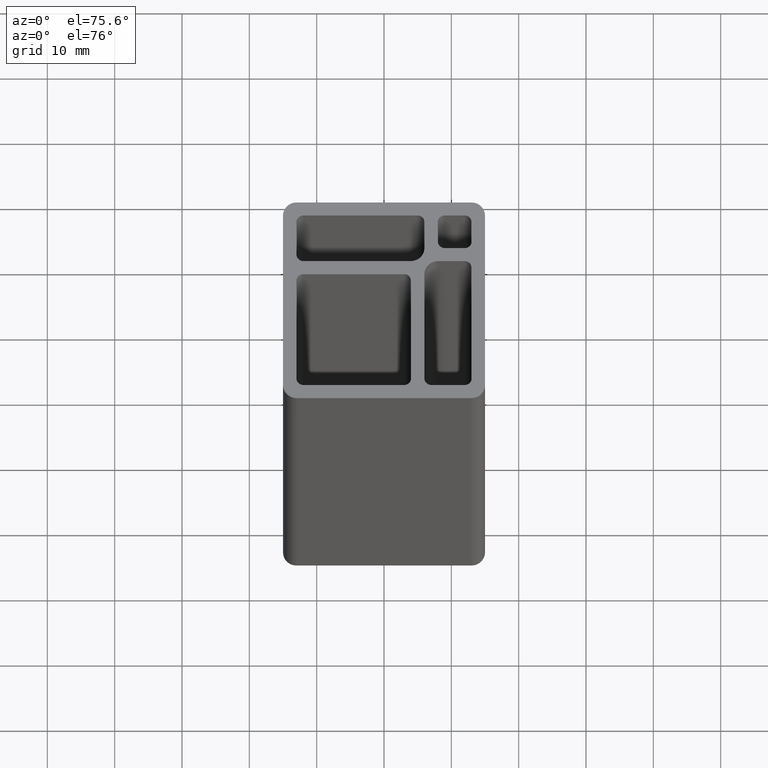
[diagram: clean part render]
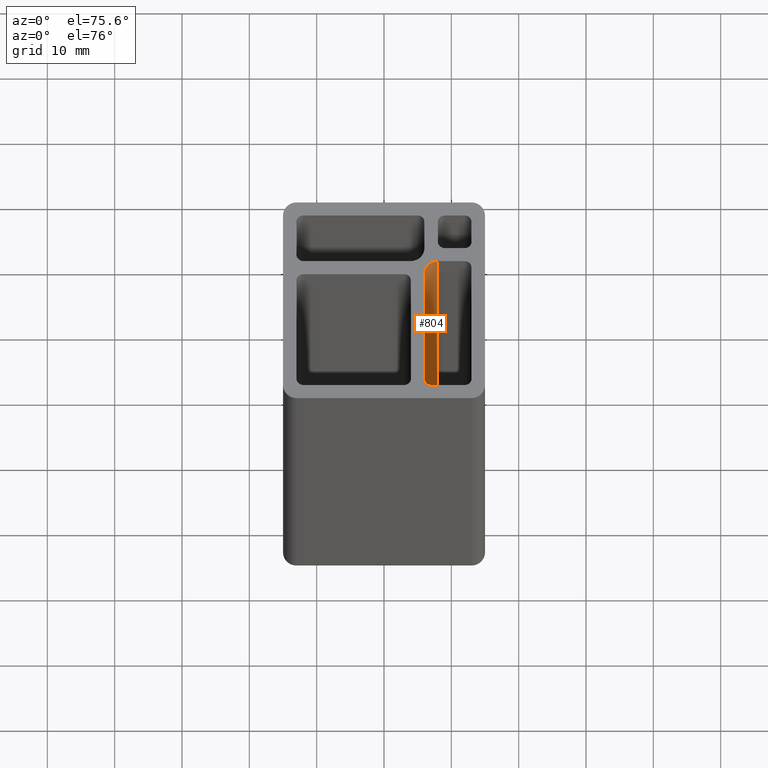
[diagram: same view with one face highlighted and labeled with its STEP entity id]
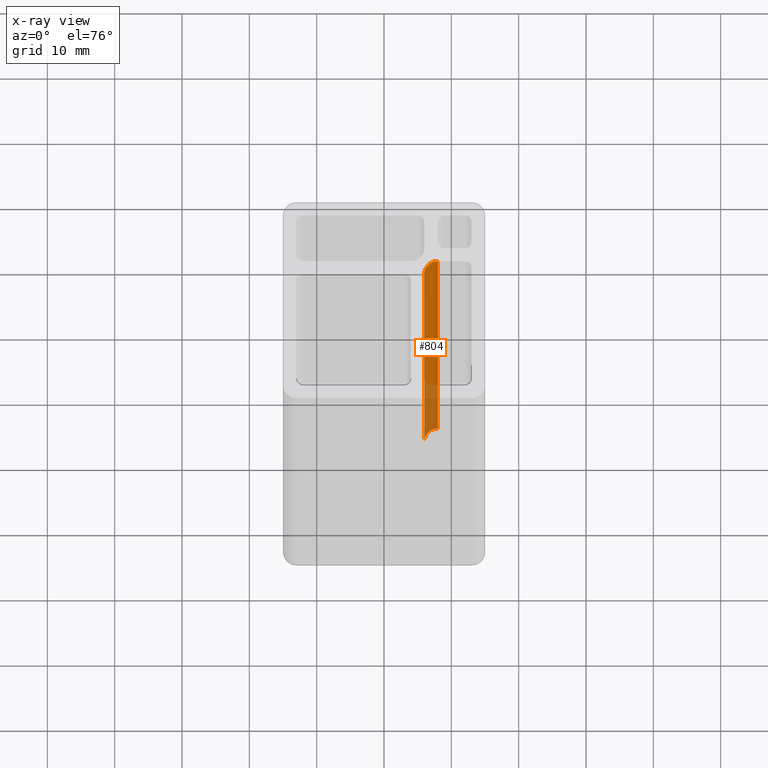
[diagram: x-ray of the same camera — body ghosted, the highlighted face saturated]
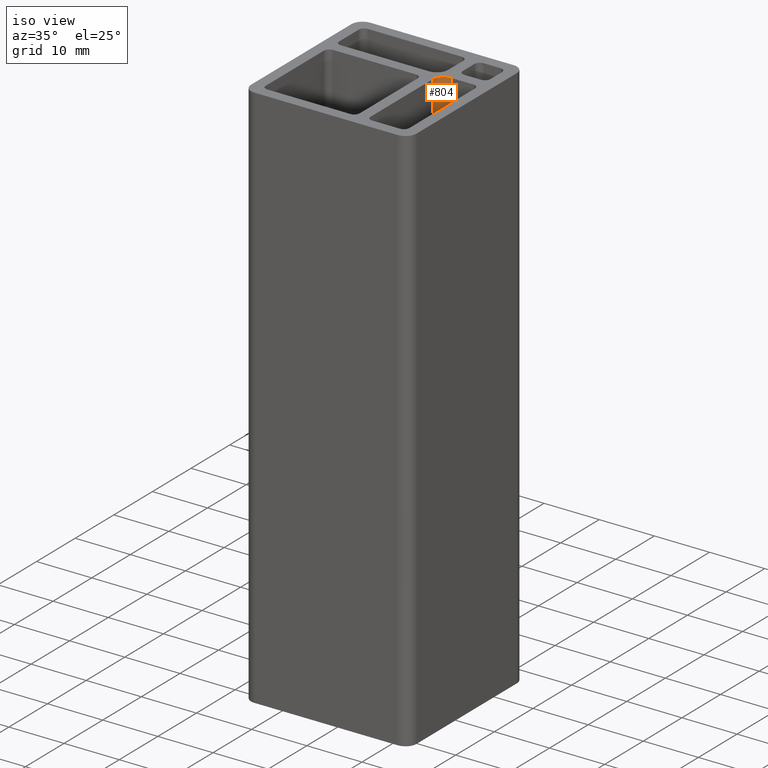
[diagram: same view with one face highlighted and labeled with its STEP entity id]
A machine part, auxiliary view. The second image highlights one B-rep face of the part: STEP entity #804.
The next image is the same camera in x-ray: the body ghosted, the highlighted face saturated — about 28% of this face is hidden behind the body in this view.
A second angle (iso view) of the same face is appended — the face is thin or edge-on in the first view.
In plain terms, the highlighted cylindrical surface (edge-blend (fillet) strip) has radius 2 mm, axis along (0, 0, 1).
Its self-contained STEP definition (entity closure, byte-faithful):
#29=CIRCLE('',#855,2.);
#30=CIRCLE('',#856,2.);
#66=CYLINDRICAL_SURFACE('',#854,2.);
#90=FACE_OUTER_BOUND('',#132,.T.);
#132=EDGE_LOOP('',(#563,#564,#565,#566));
#176=LINE('',#1175,#256);
#190=LINE('',#1214,#270);
#256=VECTOR('',#928,100.);
#270=VECTOR('',#966,100.);
#335=VERTEX_POINT('',#1171);
#337=VERTEX_POINT('',#1174);
#349=VERTEX_POINT('',#1210);
#350=VERTEX_POINT('',#1212);
#416=EDGE_CURVE('',#337,#335,#176,.T.);
#436=EDGE_CURVE('',#350,#349,#190,.T.);
#437=EDGE_CURVE('',#349,#335,#29,.T.);
#438=EDGE_CURVE('',#337,#350,#30,.T.);
#563=ORIENTED_EDGE('',*,*,#437,.F.);
#564=ORIENTED_EDGE('',*,*,#436,.F.);
#565=ORIENTED_EDGE('',*,*,#438,.F.);
#566=ORIENTED_EDGE('',*,*,#416,.T.);
#804=ADVANCED_FACE('',(#90),#66,.F.);
#854=AXIS2_PLACEMENT_3D('',#1215,#967,#968);
#855=AXIS2_PLACEMENT_3D('',#1216,#969,#970);
#856=AXIS2_PLACEMENT_3D('',#1217,#971,#972);
#928=DIRECTION('',(0.,0.,1.));
#966=DIRECTION('',(0.,0.,1.));
#967=DIRECTION('center_axis',(0.,0.,1.));
#968=DIRECTION('ref_axis',(0.,1.,0.));
#969=DIRECTION('center_axis',(0.,0.,-1.));
#970=DIRECTION('ref_axis',(0.,1.,0.));
#971=DIRECTION('center_axis',(0.,0.,1.));
#972=DIRECTION('ref_axis',(0.,1.,0.));
#1171=CARTESIAN_POINT('',(8.,6.00000000000001,100.));
#1174=CARTESIAN_POINT('',(8.,6.00000000000001,0.));
#1175=CARTESIAN_POINT('',(8.,6.00000000000001,0.));
#1210=CARTESIAN_POINT('',(6.,4.,100.));
#1212=CARTESIAN_POINT('',(6.,4.,0.));
#1214=CARTESIAN_POINT('',(6.,4.,0.));
#1215=CARTESIAN_POINT('Origin',(8.,4.,0.));
#1216=CARTESIAN_POINT('Origin',(8.,4.,100.));
#1217=CARTESIAN_POINT('Origin',(8.,4.,0.));